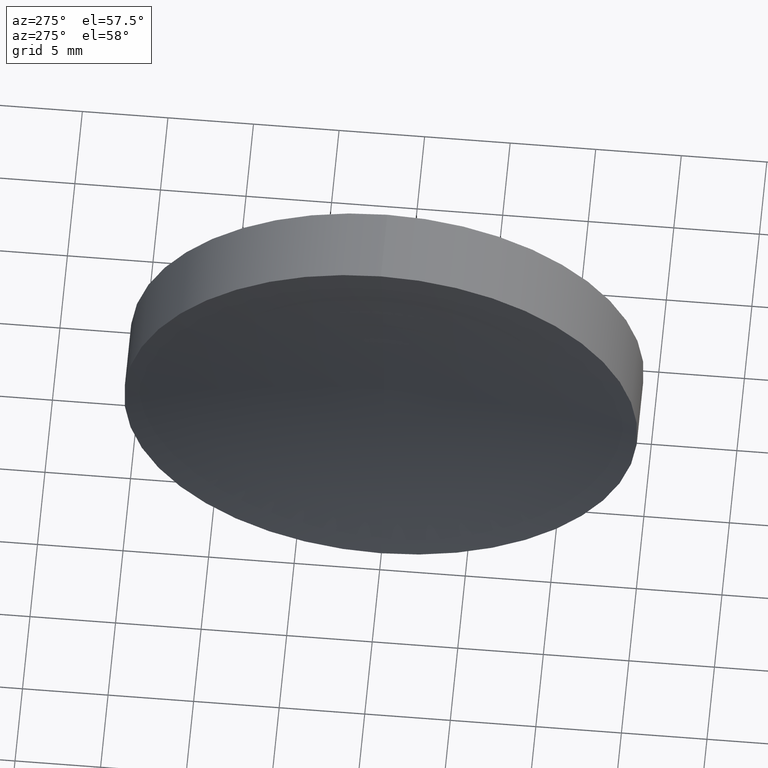
[diagram: clean part render]
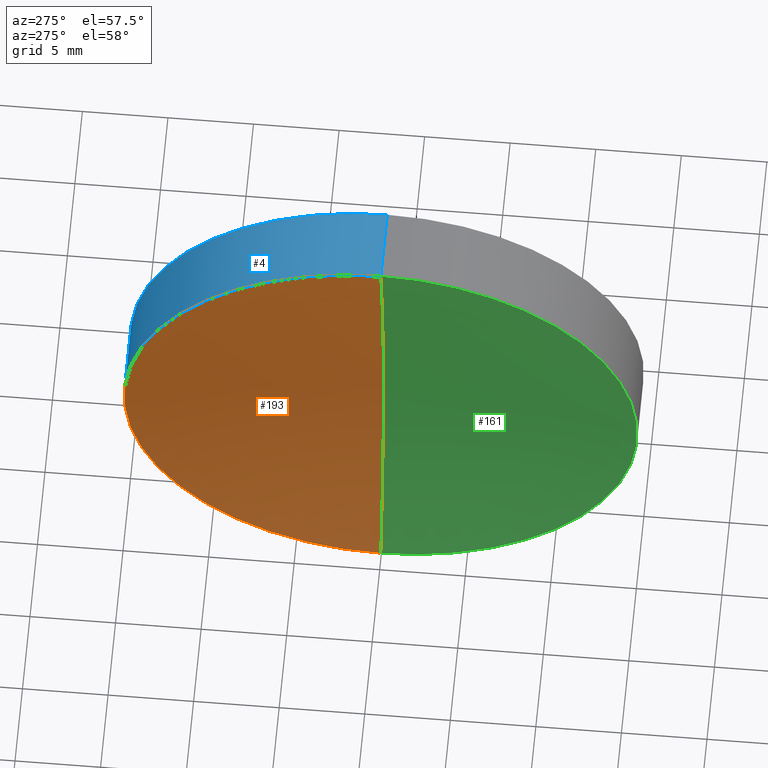
[diagram: same view with three faces highlighted in distinct colors, each labeled with its STEP entity id]
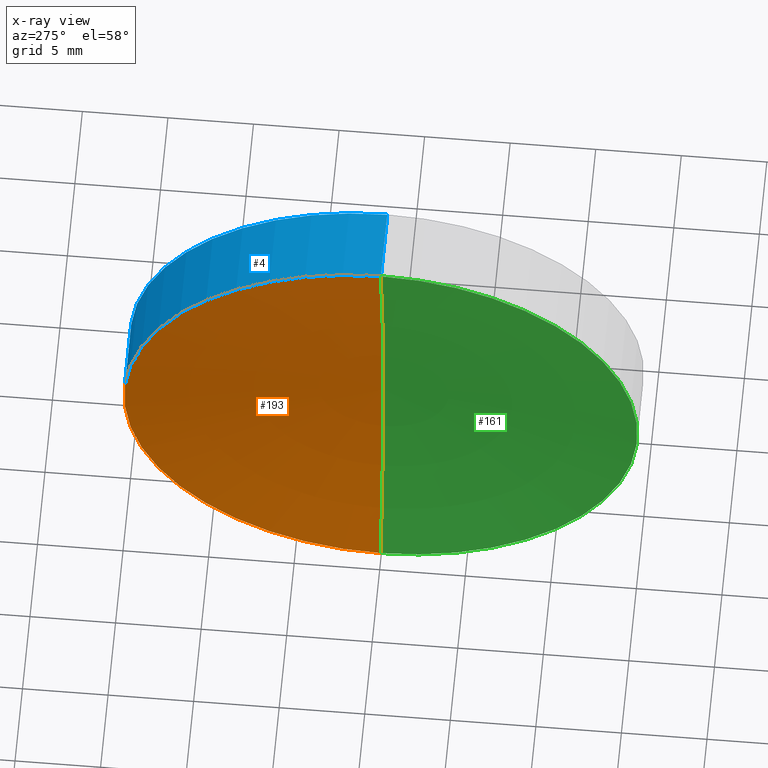
[diagram: x-ray of the same camera — body ghosted, the three highlighted faces saturated]
A machine part, auxiliary view with three faces highlighted in distinct colors.
The next image is the same camera in x-ray (body ghosted, the three faces saturated) — at least one of them is partly hidden behind the body in this view.
Their STEP definitions:

[orange] entity #193 — the highlighted toroidal blend (fillet) surface has major radius 0.0125 mm and minor (blend) radius 64.55 mm.
#10 = DIRECTION ( 'NONE',  ( 1.000000000000000000, -0.000000000000000000, -0.000000000000000000 ) ) ;
#13 = DIRECTION ( 'NONE',  ( 0.000000000000000000, 1.000000000000000000, -1.224646799147353207E-16 ) ) ;
#15 = CARTESIAN_POINT ( 'NONE',  ( -4.269999999999997797, 0.000000000000000000, -15.00000000000000355 ) ) ;
#24 = ORIENTED_EDGE ( 'NONE', *, *, #121, .T. ) ;
#25 = CARTESIAN_POINT ( 'NONE',  ( -67.04999879552782716, 0.000000000000000000, 0.000000000000000000 ) ) ;
#45 = DIRECTION ( 'NONE',  ( 0.000000000000000000, 1.224646799147352961E-16, 1.000000000000000000 ) ) ;
#46 = DIRECTION ( 'NONE',  ( 0.000000000000000000, 0.000000000000000000, -1.000000000000000000 ) ) ;
#57 = CIRCLE ( 'NONE', #176, 64.54999999999999716 ) ;
#62 = DIRECTION ( 'NONE',  ( -0.000000000000000000, -1.000000000000000000, -0.000000000000000000 ) ) ;
#63 = CIRCLE ( 'NONE', #191, 15.00000000000000000 ) ;
#73 = CARTESIAN_POINT ( 'NONE',  ( -4.269999999999997797, 1.836970198721030378E-15, 15.00000000000000355 ) ) ;
#75 = CARTESIAN_POINT ( 'NONE',  ( -67.04999879552782716, 0.000000000000000000, 0.01246985787228122033 ) ) ;
#77 = EDGE_CURVE ( 'NONE', #85, #181, #57, .T. ) ;
#85 = VERTEX_POINT ( 'NONE', #73 ) ;
#86 = DIRECTION ( 'NONE',  ( 1.000000000000000000, -0.000000000000000000, -0.000000000000000000 ) ) ;
#87 = CARTESIAN_POINT ( 'NONE',  ( -2.500000000000000444, 0.000000000000000000, 0.000000000000000000 ) ) ;
#92 = CARTESIAN_POINT ( 'NONE',  ( -67.04999879552782716, -1.527117152911162106E-18, -0.01246985787228122033 ) ) ;
#116 = VERTEX_POINT ( 'NONE', #15 ) ;
#121 = EDGE_CURVE ( 'NONE', #116, #181, #152, .T. ) ;
#126 = AXIS2_PLACEMENT_3D ( 'NONE', #75, #62, #46 ) ;
#152 = CIRCLE ( 'NONE', #126, 64.54999999999999716 ) ;
#153 = DIRECTION ( 'NONE',  ( 0.000000000000000000, 0.000000000000000000, -1.000000000000000000 ) ) ;
#162 = TOROIDAL_SURFACE ( 'NONE', #178, -0.01246985787228122033, 64.54999999999999716 ) ;
#165 = ORIENTED_EDGE ( 'NONE', *, *, #180, .F. ) ;
#176 = AXIS2_PLACEMENT_3D ( 'NONE', #92, #13, #45 ) ;
#178 = AXIS2_PLACEMENT_3D ( 'NONE', #25, #86, #153 ) ;
#179 = EDGE_LOOP ( 'NONE', ( #195, #165, #24 ) ) ;
#180 = EDGE_CURVE ( 'NONE', #116, #85, #63, .T. ) ;
#181 = VERTEX_POINT ( 'NONE', #87 ) ;
#184 = CARTESIAN_POINT ( 'NONE',  ( -4.269999999999999574, 0.000000000000000000, 0.000000000000000000 ) ) ;
#185 = FACE_OUTER_BOUND ( 'NONE', #179, .T. ) ;
#191 = AXIS2_PLACEMENT_3D ( 'NONE', #184, #10, #197 ) ;
#193 = ADVANCED_FACE ( 'NONE', ( #185 ), #162, .F. ) ;
#195 = ORIENTED_EDGE ( 'NONE', *, *, #77, .F. ) ;
#197 = DIRECTION ( 'NONE',  ( 0.000000000000000000, 0.000000000000000000, -1.000000000000000000 ) ) ;

[blue] entity #4 — the highlighted cylindrical surface (partial cylindrical patch) has radius 15 mm, axis along (1, -0, -0).
#3 = CIRCLE ( 'NONE', #112, 15.00000000000000000 ) ;
#4 = ADVANCED_FACE ( 'NONE', ( #148 ), #7, .T. ) ;
#5 = ORIENTED_EDGE ( 'NONE', *, *, #180, .T. ) ;
#7 = CYLINDRICAL_SURFACE ( 'NONE', #164, 15.00000000000000000 ) ;
#10 = DIRECTION ( 'NONE',  ( 1.000000000000000000, -0.000000000000000000, -0.000000000000000000 ) ) ;
#15 = CARTESIAN_POINT ( 'NONE',  ( -4.269999999999997797, 0.000000000000000000, -15.00000000000000355 ) ) ;
#20 = EDGE_CURVE ( 'NONE', #85, #194, #190, .T. ) ;
#30 = CARTESIAN_POINT ( 'NONE',  ( 0.000000000000000000, 0.000000000000000000, -15.00000000000000000 ) ) ;
#32 = CARTESIAN_POINT ( 'NONE',  ( 0.000000000000000000, 0.000000000000000000, 0.000000000000000000 ) ) ;
#49 = VECTOR ( 'NONE', #198, 1000.000000000000000 ) ;
#63 = CIRCLE ( 'NONE', #191, 15.00000000000000000 ) ;
#66 = EDGE_LOOP ( 'NONE', ( #5, #129, #167, #103 ) ) ;
#67 = VERTEX_POINT ( 'NONE', #30 ) ;
#73 = CARTESIAN_POINT ( 'NONE',  ( -4.269999999999997797, 1.836970198721030378E-15, 15.00000000000000355 ) ) ;
#79 = VECTOR ( 'NONE', #108, 1000.000000000000000 ) ;
#85 = VERTEX_POINT ( 'NONE', #73 ) ;
#90 = CARTESIAN_POINT ( 'NONE',  ( 0.000000000000000000, 0.000000000000000000, 0.000000000000000000 ) ) ;
#96 = EDGE_CURVE ( 'NONE', #116, #67, #157, .T. ) ;
#100 = EDGE_CURVE ( 'NONE', #67, #194, #3, .T. ) ;
#103 = ORIENTED_EDGE ( 'NONE', *, *, #96, .F. ) ;
#108 = DIRECTION ( 'NONE',  ( 1.000000000000000000, -0.000000000000000000, -0.000000000000000000 ) ) ;
#112 = AXIS2_PLACEMENT_3D ( 'NONE', #32, #173, #159 ) ;
#116 = VERTEX_POINT ( 'NONE', #15 ) ;
#129 = ORIENTED_EDGE ( 'NONE', *, *, #20, .T. ) ;
#137 = DIRECTION ( 'NONE',  ( 1.000000000000000000, -0.000000000000000000, -0.000000000000000000 ) ) ;
#139 = DIRECTION ( 'NONE',  ( 0.000000000000000000, 0.000000000000000000, -1.000000000000000000 ) ) ;
#148 = FACE_OUTER_BOUND ( 'NONE', #66, .T. ) ;
#157 = LINE ( 'NONE', #201, #79 ) ;
#159 = DIRECTION ( 'NONE',  ( 0.000000000000000000, 0.000000000000000000, -1.000000000000000000 ) ) ;
#164 = AXIS2_PLACEMENT_3D ( 'NONE', #90, #137, #139 ) ;
#167 = ORIENTED_EDGE ( 'NONE', *, *, #100, .F. ) ;
#168 = CARTESIAN_POINT ( 'NONE',  ( 0.000000000000000000, 1.836970198721029589E-15, 15.00000000000000000 ) ) ;
#173 = DIRECTION ( 'NONE',  ( 1.000000000000000000, -0.000000000000000000, -0.000000000000000000 ) ) ;
#175 = CARTESIAN_POINT ( 'NONE',  ( 0.000000000000000000, 1.836970198721029589E-15, 15.00000000000000000 ) ) ;
#180 = EDGE_CURVE ( 'NONE', #116, #85, #63, .T. ) ;
#184 = CARTESIAN_POINT ( 'NONE',  ( -4.269999999999999574, 0.000000000000000000, 0.000000000000000000 ) ) ;
#190 = LINE ( 'NONE', #175, #49 ) ;
#191 = AXIS2_PLACEMENT_3D ( 'NONE', #184, #10, #197 ) ;
#194 = VERTEX_POINT ( 'NONE', #168 ) ;
#197 = DIRECTION ( 'NONE',  ( 0.000000000000000000, 0.000000000000000000, -1.000000000000000000 ) ) ;
#198 = DIRECTION ( 'NONE',  ( 1.000000000000000000, -0.000000000000000000, -0.000000000000000000 ) ) ;
#201 = CARTESIAN_POINT ( 'NONE',  ( 0.000000000000000000, 0.000000000000000000, -15.00000000000000000 ) ) ;

[green] entity #161 — the highlighted toroidal blend (fillet) surface has major radius 0.0125 mm and minor (blend) radius 64.55 mm.
#13 = DIRECTION ( 'NONE',  ( 0.000000000000000000, 1.000000000000000000, -1.224646799147353207E-16 ) ) ;
#15 = CARTESIAN_POINT ( 'NONE',  ( -4.269999999999997797, 0.000000000000000000, -15.00000000000000355 ) ) ;
#19 = AXIS2_PLACEMENT_3D ( 'NONE', #119, #55, #133 ) ;
#21 = ORIENTED_EDGE ( 'NONE', *, *, #77, .T. ) ;
#36 = ORIENTED_EDGE ( 'NONE', *, *, #121, .F. ) ;
#39 = DIRECTION ( 'NONE',  ( 1.000000000000000000, -0.000000000000000000, -0.000000000000000000 ) ) ;
#45 = DIRECTION ( 'NONE',  ( 0.000000000000000000, 1.224646799147352961E-16, 1.000000000000000000 ) ) ;
#46 = DIRECTION ( 'NONE',  ( 0.000000000000000000, 0.000000000000000000, -1.000000000000000000 ) ) ;
#52 = EDGE_LOOP ( 'NONE', ( #150, #21, #36 ) ) ;
#55 = DIRECTION ( 'NONE',  ( 1.000000000000000000, -0.000000000000000000, -0.000000000000000000 ) ) ;
#57 = CIRCLE ( 'NONE', #176, 64.54999999999999716 ) ;
#62 = DIRECTION ( 'NONE',  ( -0.000000000000000000, -1.000000000000000000, -0.000000000000000000 ) ) ;
#68 = AXIS2_PLACEMENT_3D ( 'NONE', #105, #39, #118 ) ;
#73 = CARTESIAN_POINT ( 'NONE',  ( -4.269999999999997797, 1.836970198721030378E-15, 15.00000000000000355 ) ) ;
#75 = CARTESIAN_POINT ( 'NONE',  ( -67.04999879552782716, 0.000000000000000000, 0.01246985787228122033 ) ) ;
#77 = EDGE_CURVE ( 'NONE', #85, #181, #57, .T. ) ;
#78 = TOROIDAL_SURFACE ( 'NONE', #68, -0.01246985787228122033, 64.54999999999999716 ) ;
#85 = VERTEX_POINT ( 'NONE', #73 ) ;
#87 = CARTESIAN_POINT ( 'NONE',  ( -2.500000000000000444, 0.000000000000000000, 0.000000000000000000 ) ) ;
#92 = CARTESIAN_POINT ( 'NONE',  ( -67.04999879552782716, -1.527117152911162106E-18, -0.01246985787228122033 ) ) ;
#105 = CARTESIAN_POINT ( 'NONE',  ( -67.04999879552782716, 0.000000000000000000, 0.000000000000000000 ) ) ;
#116 = VERTEX_POINT ( 'NONE', #15 ) ;
#117 = CIRCLE ( 'NONE', #19, 15.00000000000000000 ) ;
#118 = DIRECTION ( 'NONE',  ( 0.000000000000000000, 0.000000000000000000, -1.000000000000000000 ) ) ;
#119 = CARTESIAN_POINT ( 'NONE',  ( -4.269999999999999574, 0.000000000000000000, 0.000000000000000000 ) ) ;
#121 = EDGE_CURVE ( 'NONE', #116, #181, #152, .T. ) ;
#126 = AXIS2_PLACEMENT_3D ( 'NONE', #75, #62, #46 ) ;
#133 = DIRECTION ( 'NONE',  ( 0.000000000000000000, 0.000000000000000000, -1.000000000000000000 ) ) ;
#150 = ORIENTED_EDGE ( 'NONE', *, *, #192, .F. ) ;
#152 = CIRCLE ( 'NONE', #126, 64.54999999999999716 ) ;
#155 = FACE_OUTER_BOUND ( 'NONE', #52, .T. ) ;
#161 = ADVANCED_FACE ( 'NONE', ( #155 ), #78, .F. ) ;
#176 = AXIS2_PLACEMENT_3D ( 'NONE', #92, #13, #45 ) ;
#181 = VERTEX_POINT ( 'NONE', #87 ) ;
#192 = EDGE_CURVE ( 'NONE', #85, #116, #117, .T. ) ;